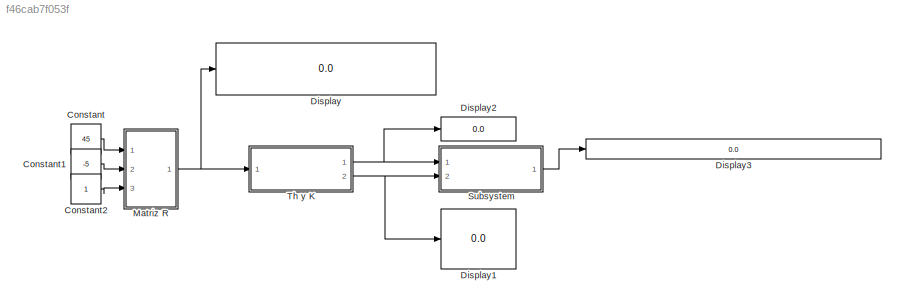
MODEL slx_f46cab7f053f
KIND model
CONFIG AbsTol = auto
CONFIG EnableMultiTasking = off
CONFIG FixedStep = auto
CONFIG MaxStep = auto
CONFIG MinStep = auto
CONFIG RelTol = 1e-3
CONFIG SampleTimeConstraint = Unconstrained
CONFIG Solver = VariableStepAuto
CONFIG SolverName = VariableStepAuto
CONFIG StartTime = 0.0
CONFIG StopTime = 4
BLOCK [Constant] Constant
  Value = 45
BLOCK [Constant] Constant1
  Value = -5
BLOCK [Constant] Constant2
BLOCK [Display] Display
  Decimation = 1
  Ports = [1]
BLOCK [Display] Display1
  Decimation = 1
  Ports = [1]
BLOCK [Display] Display2
  Decimation = 1
  Ports = [1]
BLOCK [Display] Display3
  Decimation = 1
  Ports = [1]
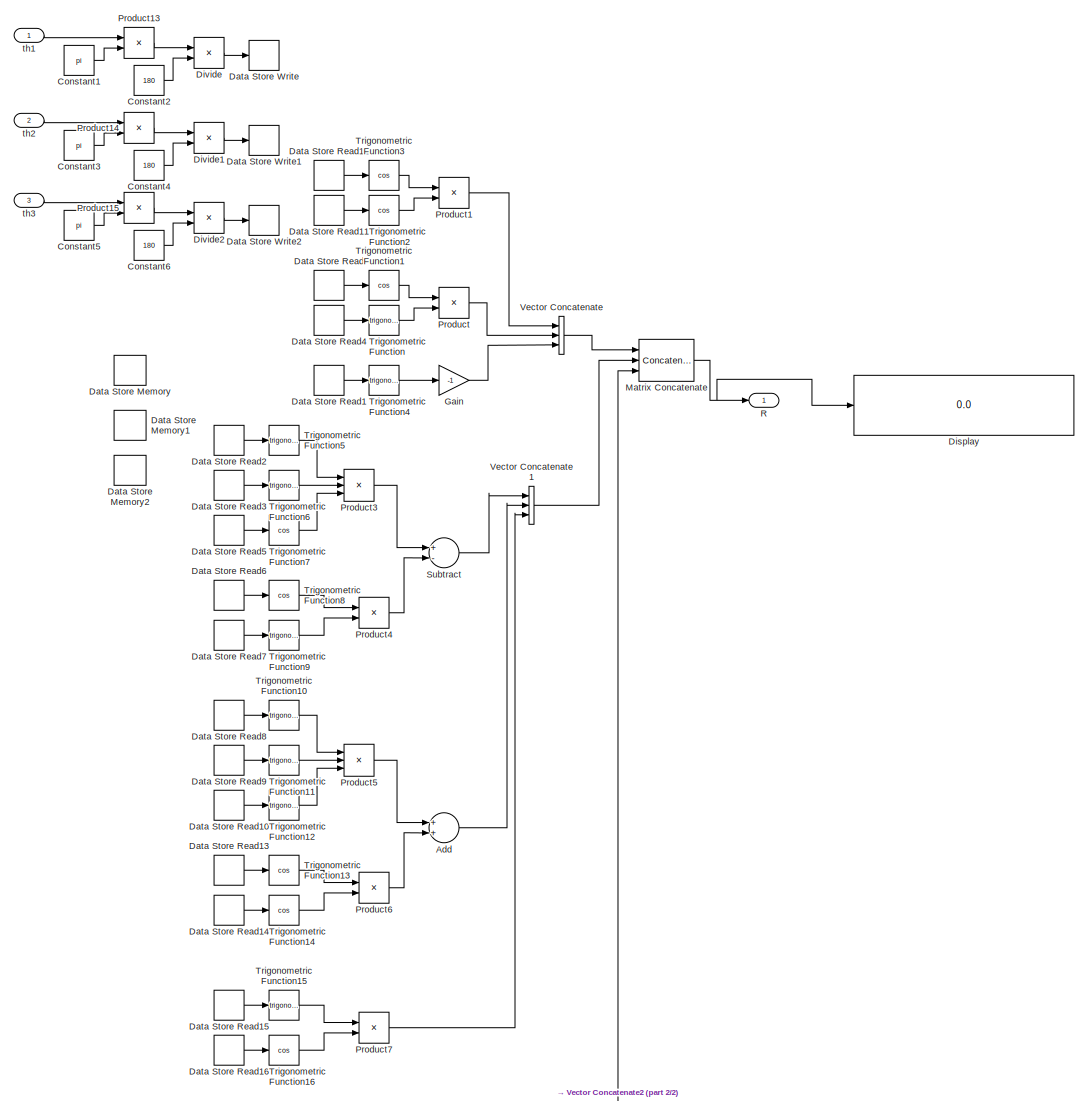
[diagram: Matriz R - part 1/2, full width, top band]
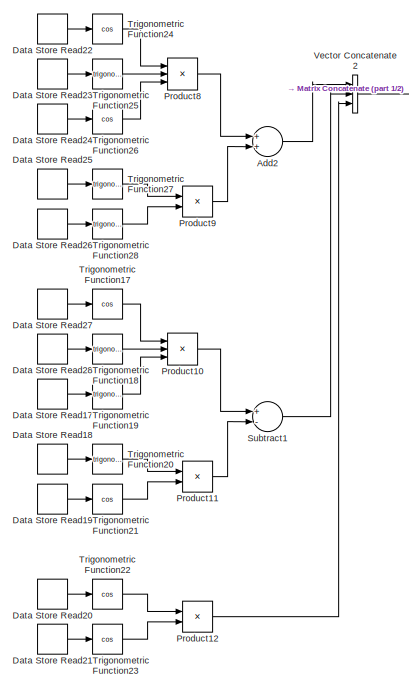
[diagram: Matriz R - part 2/2, bottom center region]
BLOCK [SubSystem] Matriz R
  Ports = [3, 1]
  RequestExecContextInheritance = off
  Variant = off
BLOCK [Sum] Matriz R/Add
  InputSameDT = off
  OutDataTypeStr = Inherit: Inherit via internal rule
  Ports = [2, 1]
  SaturateOnIntegerOverflow = off
BLOCK [Sum] Matriz R/Add2
  InputSameDT = off
  OutDataTypeStr = Inherit: Inherit via internal rule
  Ports = [2, 1]
  SaturateOnIntegerOverflow = off
BLOCK [Constant] Matriz R/Constant1
  Value = pi
BLOCK [Constant] Matriz R/Constant2
  Value = 180
BLOCK [Constant] Matriz R/Constant3
  Value = pi
BLOCK [Constant] Matriz R/Constant4
  Value = 180
BLOCK [Constant] Matriz R/Constant5
  Value = pi
BLOCK [Constant] Matriz R/Constant6
  Value = 180
BLOCK [DataStoreMemory] Matriz R/Data Store Memory
  DataStoreName = th1
  ReadBeforeWriteMsg = warning
  ShowAdditionalParam = off
  WriteAfterReadMsg = warning
  WriteAfterWriteMsg = warning
BLOCK [DataStoreMemory] Matriz R/Data Store Memory1
  DataStoreName = th2
  ReadBeforeWriteMsg = warning
  ShowAdditionalParam = off
  WriteAfterReadMsg = warning
  WriteAfterWriteMsg = warning
BLOCK [DataStoreMemory] Matriz R/Data Store Memory2
  DataStoreName = th3
  ReadBeforeWriteMsg = warning
  ShowAdditionalParam = off
  WriteAfterReadMsg = warning
  WriteAfterWriteMsg = warning
BLOCK [DataStoreRead] Matriz R/Data Store Read
  DataStoreName = th2
  Ports = [0, 1]
BLOCK [DataStoreRead] Matriz R/Data Store Read1
  DataStoreName = th2
  Ports = [0, 1]
BLOCK [DataStoreRead] Matriz R/Data Store Read10
  DataStoreName = th1
  Ports = [0, 1]
BLOCK [DataStoreRead] Matriz R/Data Store Read11
  DataStoreName = th1
  Ports = [0, 1]
BLOCK [DataStoreRead] Matriz R/Data Store Read12
  DataStoreName = th2
  Ports = [0, 1]
BLOCK [DataStoreRead] Matriz R/Data Store Read13
  DataStoreName = th3
  Ports = [0, 1]
BLOCK [DataStoreRead] Matriz R/Data Store Read14
  DataStoreName = th1
  Ports = [0, 1]
BLOCK [DataStoreRead] Matriz R/Data Store Read15
  DataStoreName = th3
  Ports = [0, 1]
BLOCK [DataStoreRead] Matriz R/Data Store Read16
  DataStoreName = th2
  Ports = [0, 1]
BLOCK [DataStoreRead] Matriz R/Data Store Read17
  DataStoreName = th1
  Ports = [0, 1]
BLOCK [DataStoreRead] Matriz R/Data Store Read18
  DataStoreName = th3
  Ports = [0, 1]
BLOCK [DataStoreRead] Matriz R/Data Store Read19
  DataStoreName = th1
  Ports = [0, 1]
BLOCK [DataStoreRead] Matriz R/Data Store Read2
  DataStoreName = th3
  Ports = [0, 1]
BLOCK [DataStoreRead] Matriz R/Data Store Read20
  DataStoreName = th3
  Ports = [0, 1]
BLOCK [DataStoreRead] Matriz R/Data Store Read21
  DataStoreName = th2
  Ports = [0, 1]
BLOCK [DataStoreRead] Matriz R/Data Store Read22
  DataStoreName = th3
  Ports = [0, 1]
BLOCK [DataStoreRead] Matriz R/Data Store Read23
  DataStoreName = th2
  Ports = [0, 1]
BLOCK [DataStoreRead] Matriz R/Data Store Read24
  DataStoreName = th1
  Ports = [0, 1]
BLOCK [DataStoreRead] Matriz R/Data Store Read25
  DataStoreName = th3
  Ports = [0, 1]
BLOCK [DataStoreRead] Matriz R/Data Store Read26
  DataStoreName = th1
  Ports = [0, 1]
BLOCK [DataStoreRead] Matriz R/Data Store Read27
  DataStoreName = th3
  Ports = [0, 1]
BLOCK [DataStoreRead] Matriz R/Data Store Read28
  DataStoreName = th2
  Ports = [0, 1]
BLOCK [DataStoreRead] Matriz R/Data Store Read3
  DataStoreName = th2
  Ports = [0, 1]
BLOCK [DataStoreRead] Matriz R/Data Store Read4
  DataStoreName = th1
  Ports = [0, 1]
BLOCK [DataStoreRead] Matriz R/Data Store Read5
  DataStoreName = th1
  Ports = [0, 1]
BLOCK [DataStoreRead] Matriz R/Data Store Read6
  DataStoreName = th3
  Ports = [0, 1]
BLOCK [DataStoreRead] Matriz R/Data Store Read7
  DataStoreName = th1
  Ports = [0, 1]
BLOCK [DataStoreRead] Matriz R/Data Store Read8
  DataStoreName = th3
  Ports = [0, 1]
BLOCK [DataStoreRead] Matriz R/Data Store Read9
  DataStoreName = th2
  Ports = [0, 1]
BLOCK [DataStoreWrite] Matriz R/Data Store Write
  DataStoreName = th1
  Ports = [1]
BLOCK [DataStoreWrite] Matriz R/Data Store Write1
  DataStoreName = th2
  Ports = [1]
BLOCK [DataStoreWrite] Matriz R/Data Store Write2
  DataStoreName = th3
  Ports = [1]
BLOCK [Display] Matriz R/Display
  Decimation = 1
  Ports = [1]
BLOCK [Product] Matriz R/Divide
  InputSameDT = off
  Inputs = */
  OutDataTypeStr = Inherit: Inherit via internal rule
  Ports = [2, 1]
  RndMeth = Floor
  SaturateOnIntegerOverflow = off
BLOCK [Product] Matriz R/Divide1
  InputSameDT = off
  Inputs = */
  OutDataTypeStr = Inherit: Inherit via internal rule
  Ports = [2, 1]
  RndMeth = Floor
  SaturateOnIntegerOverflow = off
BLOCK [Product] Matriz R/Divide2
  InputSameDT = off
  Inputs = */
  OutDataTypeStr = Inherit: Inherit via internal rule
  Ports = [2, 1]
  RndMeth = Floor
  SaturateOnIntegerOverflow = off
BLOCK [Gain] Matriz R/Gain
  Gain = -1
  OutDataTypeStr = Inherit: Inherit via internal rule
  ParamDataTypeStr = Inherit: Inherit via internal rule
  SaturateOnIntegerOverflow = off
BLOCK [Concatenate] Matriz R/Matrix Concatenate
  ConcatenateDimension = 3
  NumInputs = 3
  Ports = [3, 1]
BLOCK [Product] Matriz R/Product
  InputSameDT = off
  OutDataTypeStr = Inherit: Inherit via internal rule
  Ports = [2, 1]
  RndMeth = Floor
  SaturateOnIntegerOverflow = off
BLOCK [Product] Matriz R/Product1
  InputSameDT = off
  OutDataTypeStr = Inherit: Inherit via internal rule
  Ports = [2, 1]
  RndMeth = Floor
  SaturateOnIntegerOverflow = off
BLOCK [Product] Matriz R/Product10
  InputSameDT = off
  Inputs = 3
  OutDataTypeStr = Inherit: Inherit via internal rule
  Ports = [3, 1]
  RndMeth = Floor
  SaturateOnIntegerOverflow = off
BLOCK [Product] Matriz R/Product11
  InputSameDT = off
  OutDataTypeStr = Inherit: Inherit via internal rule
  Ports = [2, 1]
  RndMeth = Floor
  SaturateOnIntegerOverflow = off
BLOCK [Product] Matriz R/Product12
  InputSameDT = off
  OutDataTypeStr = Inherit: Inherit via internal rule
  Ports = [2, 1]
  RndMeth = Floor
  SaturateOnIntegerOverflow = off
BLOCK [Product] Matriz R/Product13
  InputSameDT = off
  OutDataTypeStr = Inherit: Inherit via internal rule
  Ports = [2, 1]
  RndMeth = Floor
  SaturateOnIntegerOverflow = off
BLOCK [Product] Matriz R/Product14
  InputSameDT = off
  OutDataTypeStr = Inherit: Inherit via internal rule
  Ports = [2, 1]
  RndMeth = Floor
  SaturateOnIntegerOverflow = off
BLOCK [Product] Matriz R/Product15
  InputSameDT = off
  OutDataTypeStr = Inherit: Inherit via internal rule
  Ports = [2, 1]
  RndMeth = Floor
  SaturateOnIntegerOverflow = off
BLOCK [Product] Matriz R/Product3
  InputSameDT = off
  Inputs = 3
  OutDataTypeStr = Inherit: Inherit via internal rule
  Ports = [3, 1]
  RndMeth = Floor
  SaturateOnIntegerOverflow = off
BLOCK [Product] Matriz R/Product4
  InputSameDT = off
  OutDataTypeStr = Inherit: Inherit via internal rule
  Ports = [2, 1]
  RndMeth = Floor
  SaturateOnIntegerOverflow = off
BLOCK [Product] Matriz R/Product5
  InputSameDT = off
  Inputs = 3
  OutDataTypeStr = Inherit: Inherit via internal rule
  Ports = [3, 1]
  RndMeth = Floor
  SaturateOnIntegerOverflow = off
BLOCK [Product] Matriz R/Product6
  InputSameDT = off
  OutDataTypeStr = Inherit: Inherit via internal rule
  Ports = [2, 1]
  RndMeth = Floor
  SaturateOnIntegerOverflow = off
BLOCK [Product] Matriz R/Product7
  InputSameDT = off
  OutDataTypeStr = Inherit: Inherit via internal rule
  Ports = [2, 1]
  RndMeth = Floor
  SaturateOnIntegerOverflow = off
BLOCK [Product] Matriz R/Product8
  InputSameDT = off
  Inputs = 3
  OutDataTypeStr = Inherit: Inherit via internal rule
  Ports = [3, 1]
  RndMeth = Floor
  SaturateOnIntegerOverflow = off
BLOCK [Product] Matriz R/Product9
  InputSameDT = off
  OutDataTypeStr = Inherit: Inherit via internal rule
  Ports = [2, 1]
  RndMeth = Floor
  SaturateOnIntegerOverflow = off
BLOCK [Outport] Matriz R/R
  IconDisplay = Port number
BLOCK [Sum] Matriz R/Subtract
  InputSameDT = off
  Inputs = +-
  OutDataTypeStr = Inherit: Inherit via internal rule
  Ports = [2, 1]
  SaturateOnIntegerOverflow = off
BLOCK [Sum] Matriz R/Subtract1
  InputSameDT = off
  Inputs = +-
  OutDataTypeStr = Inherit: Inherit via internal rule
  Ports = [2, 1]
  SaturateOnIntegerOverflow = off
BLOCK [Trigonometry] Matriz R/Trigonometric Function
  Ports = [1, 1]
BLOCK [Trigonometry] Matriz R/Trigonometric Function1
  Operator = cos
  Ports = [1, 1]
BLOCK [Trigonometry] Matriz R/Trigonometric Function10
  Ports = [1, 1]
BLOCK [Trigonometry] Matriz R/Trigonometric Function11
  Ports = [1, 1]
BLOCK [Trigonometry] Matriz R/Trigonometric Function12
  Ports = [1, 1]
BLOCK [Trigonometry] Matriz R/Trigonometric Function13
  Operator = cos
  Ports = [1, 1]
BLOCK [Trigonometry] Matriz R/Trigonometric Function14
  Operator = cos
  Ports = [1, 1]
BLOCK [Trigonometry] Matriz R/Trigonometric Function15
  Ports = [1, 1]
BLOCK [Trigonometry] Matriz R/Trigonometric Function16
  Operator = cos
  Ports = [1, 1]
BLOCK [Trigonometry] Matriz R/Trigonometric Function17
  Operator = cos
  Ports = [1, 1]
BLOCK [Trigonometry] Matriz R/Trigonometric Function18
  Ports = [1, 1]
BLOCK [Trigonometry] Matriz R/Trigonometric Function19
  Ports = [1, 1]
BLOCK [Trigonometry] Matriz R/Trigonometric Function2
  Operator = cos
  Ports = [1, 1]
BLOCK [Trigonometry] Matriz R/Trigonometric Function20
  Ports = [1, 1]
BLOCK [Trigonometry] Matriz R/Trigonometric Function21
  Operator = cos
  Ports = [1, 1]
BLOCK [Trigonometry] Matriz R/Trigonometric Function22
  Operator = cos
  Ports = [1, 1]
BLOCK [Trigonometry] Matriz R/Trigonometric Function23
  Operator = cos
  Ports = [1, 1]
BLOCK [Trigonometry] Matriz R/Trigonometric Function24
  Operator = cos
  Ports = [1, 1]
BLOCK [Trigonometry] Matriz R/Trigonometric Function25
  Ports = [1, 1]
BLOCK [Trigonometry] Matriz R/Trigonometric Function26
  Operator = cos
  Ports = [1, 1]
BLOCK [Trigonometry] Matriz R/Trigonometric Function27
  Ports = [1, 1]
BLOCK [Trigonometry] Matriz R/Trigonometric Function28
  Ports = [1, 1]
BLOCK [Trigonometry] Matriz R/Trigonometric Function3
  Operator = cos
  Ports = [1, 1]
BLOCK [Trigonometry] Matriz R/Trigonometric Function4
  Ports = [1, 1]
BLOCK [Trigonometry] Matriz R/Trigonometric Function5
  Ports = [1, 1]
BLOCK [Trigonometry] Matriz R/Trigonometric Function6
  Ports = [1, 1]
BLOCK [Trigonometry] Matriz R/Trigonometric Function7
  Operator = cos
  Ports = [1, 1]
BLOCK [Trigonometry] Matriz R/Trigonometric Function8
  Operator = cos
  Ports = [1, 1]
BLOCK [Trigonometry] Matriz R/Trigonometric Function9
  Ports = [1, 1]
BLOCK [Concatenate] Matriz R/Vector Concatenate
  NumInputs = 3
  Ports = [3, 1]
BLOCK [Concatenate] Matriz R/Vector Concatenate1
  NumInputs = 3
  Ports = [3, 1]
BLOCK [Concatenate] Matriz R/Vector Concatenate2
  NumInputs = 3
  Ports = [3, 1]
BLOCK [Inport] Matriz R/th1
  IconDisplay = Port number
BLOCK [Inport] Matriz R/th2
  IconDisplay = Port number
  Port = 2
BLOCK [Inport] Matriz R/th3
  IconDisplay = Port number
  Port = 3
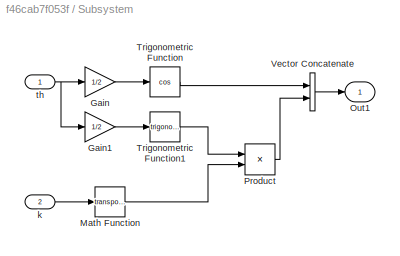
BLOCK [SubSystem] Subsystem
  Ports = [2, 1]
  RequestExecContextInheritance = off
  Variant = off
BLOCK [Gain] Subsystem/Gain
  Gain = 1/2
  OutDataTypeStr = Inherit: Inherit via internal rule
  ParamDataTypeStr = Inherit: Inherit via internal rule
  SaturateOnIntegerOverflow = off
BLOCK [Gain] Subsystem/Gain1
  Gain = 1/2
  OutDataTypeStr = Inherit: Inherit via internal rule
  ParamDataTypeStr = Inherit: Inherit via internal rule
  SaturateOnIntegerOverflow = off
BLOCK [Math] Subsystem/Math Function
  Operator = transpose
  Ports = [1, 1]
BLOCK [Outport] Subsystem/Out1
  IconDisplay = Port number
BLOCK [Product] Subsystem/Product
  InputSameDT = off
  OutDataTypeStr = Inherit: Inherit via internal rule
  Ports = [2, 1]
  RndMeth = Floor
  SaturateOnIntegerOverflow = off
BLOCK [Trigonometry] Subsystem/Trigonometric Function
  Operator = cos
  Ports = [1, 1]
BLOCK [Trigonometry] Subsystem/Trigonometric Function1
  Ports = [1, 1]
BLOCK [Concatenate] Subsystem/Vector Concatenate
  Ports = [2, 1]
BLOCK [Inport] Subsystem/k 
  IconDisplay = Port number
  Port = 2
BLOCK [Inport] Subsystem/th 
  IconDisplay = Port number
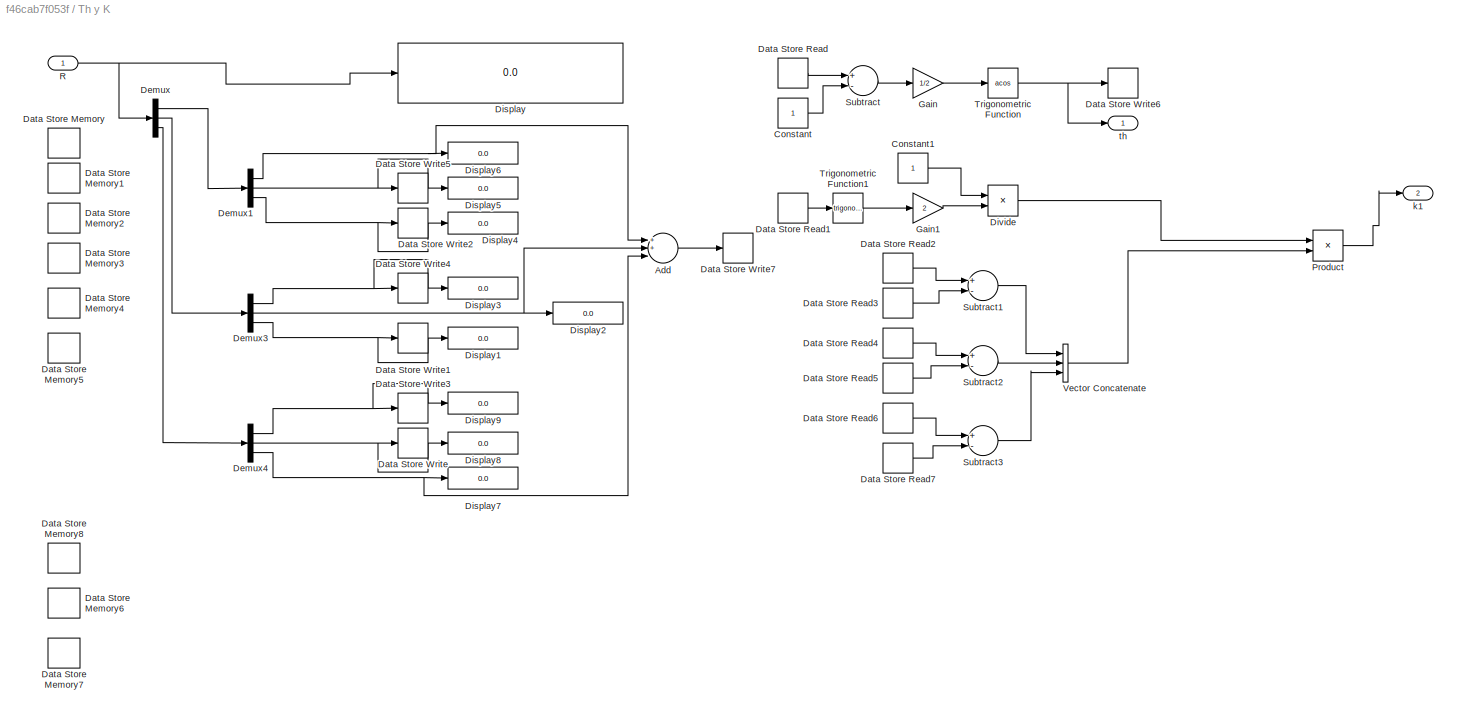
BLOCK [SubSystem] Th y K
  Ports = [1, 2]
  RequestExecContextInheritance = off
  Variant = off
BLOCK [Sum] Th y K/Add
  InputSameDT = off
  Inputs = 3
  OutDataTypeStr = Inherit: Inherit via internal rule
  Ports = [3, 1]
  SaturateOnIntegerOverflow = off
BLOCK [Constant] Th y K/Constant
BLOCK [Constant] Th y K/Constant1
BLOCK [DataStoreMemory] Th y K/Data Store Memory
  DataStoreName = r32
  ReadBeforeWriteMsg = warning
  ShowAdditionalParam = off
  WriteAfterReadMsg = warning
  WriteAfterWriteMsg = warning
BLOCK [DataStoreMemory] Th y K/Data Store Memory1
  DataStoreName = r23
  ReadBeforeWriteMsg = warning
  ShowAdditionalParam = off
  WriteAfterReadMsg = warning
  WriteAfterWriteMsg = warning
BLOCK [DataStoreMemory] Th y K/Data Store Memory2
  DataStoreName = r13
  ReadBeforeWriteMsg = warning
  ShowAdditionalParam = off
  WriteAfterReadMsg = warning
  WriteAfterWriteMsg = warning
BLOCK [DataStoreMemory] Th y K/Data Store Memory3
  DataStoreName = r31
  ReadBeforeWriteMsg = warning
  ShowAdditionalParam = off
  WriteAfterReadMsg = warning
  WriteAfterWriteMsg = warning
BLOCK [DataStoreMemory] Th y K/Data Store Memory4
  DataStoreName = r21
  ReadBeforeWriteMsg = warning
  ShowAdditionalParam = off
  WriteAfterReadMsg = warning
  WriteAfterWriteMsg = warning
BLOCK [DataStoreMemory] Th y K/Data Store Memory5
  DataStoreName = r12
  ReadBeforeWriteMsg = warning
  ShowAdditionalParam = off
  WriteAfterReadMsg = warning
  WriteAfterWriteMsg = warning
BLOCK [DataStoreMemory] Th y K/Data Store Memory6
  DataStoreName = th
  ReadBeforeWriteMsg = warning
  ShowAdditionalParam = off
  WriteAfterReadMsg = warning
  WriteAfterWriteMsg = warning
BLOCK [DataStoreMemory] Th y K/Data Store Memory7
  DataStoreName = k
  ReadBeforeWriteMsg = warning
  ShowAdditionalParam = off
  WriteAfterReadMsg = warning
  WriteAfterWriteMsg = warning
BLOCK [DataStoreMemory] Th y K/Data Store Memory8
  DataStoreName = trace
  ReadBeforeWriteMsg = warning
  ShowAdditionalParam = off
  WriteAfterReadMsg = warning
  WriteAfterWriteMsg = warning
BLOCK [DataStoreRead] Th y K/Data Store Read
  DataStoreName = trace
  Ports = [0, 1]
BLOCK [DataStoreRead] Th y K/Data Store Read1
  DataStoreName = th
  Ports = [0, 1]
BLOCK [DataStoreRead] Th y K/Data Store Read2
  DataStoreName = r32
  Ports = [0, 1]
BLOCK [DataStoreRead] Th y K/Data Store Read3
  DataStoreName = r23
  Ports = [0, 1]
BLOCK [DataStoreRead] Th y K/Data Store Read4
  DataStoreName = r13
  Ports = [0, 1]
BLOCK [DataStoreRead] Th y K/Data Store Read5
  DataStoreName = r31
  Ports = [0, 1]
BLOCK [DataStoreRead] Th y K/Data Store Read6
  DataStoreName = r21
  Ports = [0, 1]
BLOCK [DataStoreRead] Th y K/Data Store Read7
  DataStoreName = r12
  Ports = [0, 1]
BLOCK [DataStoreWrite] Th y K/Data Store Write
  DataStoreName = r32
  Ports = [1]
BLOCK [DataStoreWrite] Th y K/Data Store Write1
  DataStoreName = r23
  Ports = [1]
BLOCK [DataStoreWrite] Th y K/Data Store Write2
  DataStoreName = r13
  Ports = [1]
BLOCK [DataStoreWrite] Th y K/Data Store Write3
  DataStoreName = r31
  Ports = [1]
BLOCK [DataStoreWrite] Th y K/Data Store Write4
  DataStoreName = r21
  Ports = [1]
BLOCK [DataStoreWrite] Th y K/Data Store Write5
  DataStoreName = r12
  Ports = [1]
BLOCK [DataStoreWrite] Th y K/Data Store Write6
  DataStoreName = th
  Ports = [1]
BLOCK [DataStoreWrite] Th y K/Data Store Write7
  DataStoreName = trace
  Ports = [1]
BLOCK [Demux] Th y K/Demux
  DisplayOption = bar
  Outputs = 3
  Ports = [1, 3]
BLOCK [Demux] Th y K/Demux1
  DisplayOption = bar
  Outputs = 3
  Ports = [1, 3]
BLOCK [Demux] Th y K/Demux3
  DisplayOption = bar
  Outputs = 3
  Ports = [1, 3]
BLOCK [Demux] Th y K/Demux4
  DisplayOption = bar
  Outputs = 3
  Ports = [1, 3]
BLOCK [Display] Th y K/Display
  Decimation = 1
  Ports = [1]
BLOCK [Display] Th y K/Display1
  Decimation = 1
  Ports = [1]
BLOCK [Display] Th y K/Display2
  Decimation = 1
  Ports = [1]
BLOCK [Display] Th y K/Display3
  Decimation = 1
  Ports = [1]
BLOCK [Display] Th y K/Display4
  Decimation = 1
  Ports = [1]
BLOCK [Display] Th y K/Display5
  Decimation = 1
  Ports = [1]
BLOCK [Display] Th y K/Display6
  Decimation = 1
  Ports = [1]
BLOCK [Display] Th y K/Display7
  Decimation = 1
  Ports = [1]
BLOCK [Display] Th y K/Display8
  Decimation = 1
  Ports = [1]
BLOCK [Display] Th y K/Display9
  Decimation = 1
  Ports = [1]
BLOCK [Product] Th y K/Divide
  InputSameDT = off
  Inputs = */
  OutDataTypeStr = Inherit: Inherit via internal rule
  Ports = [2, 1]
  RndMeth = Floor
  SaturateOnIntegerOverflow = off
BLOCK [Gain] Th y K/Gain
  Gain = 1/2
  OutDataTypeStr = Inherit: Inherit via internal rule
  ParamDataTypeStr = Inherit: Inherit via internal rule
  SaturateOnIntegerOverflow = off
BLOCK [Gain] Th y K/Gain1
  Gain = 2
  OutDataTypeStr = Inherit: Inherit via internal rule
  ParamDataTypeStr = Inherit: Inherit via internal rule
  SaturateOnIntegerOverflow = off
BLOCK [Product] Th y K/Product
  InputSameDT = off
  OutDataTypeStr = Inherit: Inherit via internal rule
  Ports = [2, 1]
  RndMeth = Floor
  SaturateOnIntegerOverflow = off
BLOCK [Inport] Th y K/R 
  IconDisplay = Port number
BLOCK [Sum] Th y K/Subtract
  InputSameDT = off
  Inputs = +-
  OutDataTypeStr = Inherit: Inherit via internal rule
  Ports = [2, 1]
  SaturateOnIntegerOverflow = off
BLOCK [Sum] Th y K/Subtract1
  InputSameDT = off
  Inputs = +-
  OutDataTypeStr = Inherit: Inherit via internal rule
  Ports = [2, 1]
  SaturateOnIntegerOverflow = off
BLOCK [Sum] Th y K/Subtract2
  InputSameDT = off
  Inputs = +-
  OutDataTypeStr = Inherit: Inherit via internal rule
  Ports = [2, 1]
  SaturateOnIntegerOverflow = off
BLOCK [Sum] Th y K/Subtract3
  InputSameDT = off
  Inputs = +-
  OutDataTypeStr = Inherit: Inherit via internal rule
  Ports = [2, 1]
  SaturateOnIntegerOverflow = off
BLOCK [Trigonometry] Th y K/Trigonometric Function
  Operator = acos
  Ports = [1, 1]
BLOCK [Trigonometry] Th y K/Trigonometric Function1
  Ports = [1, 1]
BLOCK [Concatenate] Th y K/Vector Concatenate
  Mode = Multidimensional array
  NumInputs = 3
  Ports = [3, 1]
BLOCK [Outport] Th y K/k1
  IconDisplay = Port number
  Port = 2
BLOCK [Outport] Th y K/th 
  IconDisplay = Port number
LINE Constant1:1 -> Matriz R:2
LINE Constant2:1 -> Matriz R:3
LINE Constant:1 -> Matriz R:1
LINE Matriz R/Add2:1 -> Matriz R/Vector Concatenate2:1
LINE Matriz R/Add:1 -> Matriz R/Vector Concatenate1:2
LINE Matriz R/Constant1:1 -> Matriz R/Product13:2
LINE Matriz R/Constant2:1 -> Matriz R/Divide:2
LINE Matriz R/Constant3:1 -> Matriz R/Product14:2
LINE Matriz R/Constant4:1 -> Matriz R/Divide1:2
LINE Matriz R/Constant5:1 -> Matriz R/Product15:2
LINE Matriz R/Constant6:1 -> Matriz R/Divide2:2
LINE Matriz R/Data Store Read10:1 -> Matriz R/Trigonometric Function12:1
LINE Matriz R/Data Store Read11:1 -> Matriz R/Trigonometric Function2:1
LINE Matriz R/Data Store Read12:1 -> Matriz R/Trigonometric Function3:1
LINE Matriz R/Data Store Read13:1 -> Matriz R/Trigonometric Function13:1
LINE Matriz R/Data Store Read14:1 -> Matriz R/Trigonometric Function14:1
LINE Matriz R/Data Store Read15:1 -> Matriz R/Trigonometric Function15:1
LINE Matriz R/Data Store Read16:1 -> Matriz R/Trigonometric Function16:1
LINE Matriz R/Data Store Read17:1 -> Matriz R/Trigonometric Function19:1
LINE Matriz R/Data Store Read18:1 -> Matriz R/Trigonometric Function20:1
LINE Matriz R/Data Store Read19:1 -> Matriz R/Trigonometric Function21:1
LINE Matriz R/Data Store Read1:1 -> Matriz R/Trigonometric Function4:1
LINE Matriz R/Data Store Read20:1 -> Matriz R/Trigonometric Function22:1
LINE Matriz R/Data Store Read21:1 -> Matriz R/Trigonometric Function23:1
LINE Matriz R/Data Store Read22:1 -> Matriz R/Trigonometric Function24:1
LINE Matriz R/Data Store Read23:1 -> Matriz R/Trigonometric Function25:1
LINE Matriz R/Data Store Read24:1 -> Matriz R/Trigonometric Function26:1
LINE Matriz R/Data Store Read25:1 -> Matriz R/Trigonometric Function27:1
LINE Matriz R/Data Store Read26:1 -> Matriz R/Trigonometric Function28:1
LINE Matriz R/Data Store Read27:1 -> Matriz R/Trigonometric Function17:1
LINE Matriz R/Data Store Read28:1 -> Matriz R/Trigonometric Function18:1
LINE Matriz R/Data Store Read2:1 -> Matriz R/Trigonometric Function5:1
LINE Matriz R/Data Store Read3:1 -> Matriz R/Trigonometric Function6:1
LINE Matriz R/Data Store Read4:1 -> Matriz R/Trigonometric Function:1
LINE Matriz R/Data Store Read5:1 -> Matriz R/Trigonometric Function7:1
LINE Matriz R/Data Store Read6:1 -> Matriz R/Trigonometric Function8:1
LINE Matriz R/Data Store Read7:1 -> Matriz R/Trigonometric Function9:1
LINE Matriz R/Data Store Read8:1 -> Matriz R/Trigonometric Function10:1
LINE Matriz R/Data Store Read9:1 -> Matriz R/Trigonometric Function11:1
LINE Matriz R/Data Store Read:1 -> Matriz R/Trigonometric Function1:1
LINE Matriz R/Divide1:1 -> Matriz R/Data Store Write1:1
LINE Matriz R/Divide2:1 -> Matriz R/Data Store Write2:1
LINE Matriz R/Divide:1 -> Matriz R/Data Store Write:1
LINE Matriz R/Gain:1 -> Matriz R/Vector Concatenate:3
NET Matriz R/Matrix Concatenate:1 -> Matriz R/Display:1, Matriz R/R:1
LINE Matriz R/Product10:1 -> Matriz R/Subtract1:1
LINE Matriz R/Product11:1 -> Matriz R/Subtract1:2
LINE Matriz R/Product12:1 -> Matriz R/Vector Concatenate2:3
LINE Matriz R/Product13:1 -> Matriz R/Divide:1
LINE Matriz R/Product14:1 -> Matriz R/Divide1:1
LINE Matriz R/Product15:1 -> Matriz R/Divide2:1
LINE Matriz R/Product1:1 -> Matriz R/Vector Concatenate:1
LINE Matriz R/Product3:1 -> Matriz R/Subtract:1
LINE Matriz R/Product4:1 -> Matriz R/Subtract:2
LINE Matriz R/Product5:1 -> Matriz R/Add:1
LINE Matriz R/Product6:1 -> Matriz R/Add:2
LINE Matriz R/Product7:1 -> Matriz R/Vector Concatenate1:3
LINE Matriz R/Product8:1 -> Matriz R/Add2:1
LINE Matriz R/Product9:1 -> Matriz R/Add2:2
LINE Matriz R/Product:1 -> Matriz R/Vector Concatenate:2
LINE Matriz R/Subtract1:1 -> Matriz R/Vector Concatenate2:2
LINE Matriz R/Subtract:1 -> Matriz R/Vector Concatenate1:1
LINE Matriz R/Trigonometric Function10:1 -> Matriz R/Product5:1
LINE Matriz R/Trigonometric Function11:1 -> Matriz R/Product5:2
LINE Matriz R/Trigonometric Function12:1 -> Matriz R/Product5:3
LINE Matriz R/Trigonometric Function13:1 -> Matriz R/Product6:1
LINE Matriz R/Trigonometric Function14:1 -> Matriz R/Product6:2
LINE Matriz R/Trigonometric Function15:1 -> Matriz R/Product7:1
LINE Matriz R/Trigonometric Function16:1 -> Matriz R/Product7:2
LINE Matriz R/Trigonometric Function17:1 -> Matriz R/Product10:1
LINE Matriz R/Trigonometric Function18:1 -> Matriz R/Product10:2
LINE Matriz R/Trigonometric Function19:1 -> Matriz R/Product10:3
LINE Matriz R/Trigonometric Function1:1 -> Matriz R/Product:1
LINE Matriz R/Trigonometric Function20:1 -> Matriz R/Product11:1
LINE Matriz R/Trigonometric Function21:1 -> Matriz R/Product11:2
LINE Matriz R/Trigonometric Function22:1 -> Matriz R/Product12:1
LINE Matriz R/Trigonometric Function23:1 -> Matriz R/Product12:2
LINE Matriz R/Trigonometric Function24:1 -> Matriz R/Product8:1
LINE Matriz R/Trigonometric Function25:1 -> Matriz R/Product8:2
LINE Matriz R/Trigonometric Function26:1 -> Matriz R/Product8:3
LINE Matriz R/Trigonometric Function27:1 -> Matriz R/Product9:1
LINE Matriz R/Trigonometric Function28:1 -> Matriz R/Product9:2
LINE Matriz R/Trigonometric Function2:1 -> Matriz R/Product1:2
LINE Matriz R/Trigonometric Function3:1 -> Matriz R/Product1:1
LINE Matriz R/Trigonometric Function4:1 -> Matriz R/Gain:1
LINE Matriz R/Trigonometric Function5:1 -> Matriz R/Product3:1
LINE Matriz R/Trigonometric Function6:1 -> Matriz R/Product3:2
LINE Matriz R/Trigonometric Function7:1 -> Matriz R/Product3:3
LINE Matriz R/Trigonometric Function8:1 -> Matriz R/Product4:1
LINE Matriz R/Trigonometric Function9:1 -> Matriz R/Product4:2
LINE Matriz R/Trigonometric Function:1 -> Matriz R/Product:2
LINE Matriz R/Vector Concatenate1:1 -> Matriz R/Matrix Concatenate:2
LINE Matriz R/Vector Concatenate2:1 -> Matriz R/Matrix Concatenate:3
LINE Matriz R/Vector Concatenate:1 -> Matriz R/Matrix Concatenate:1
LINE Matriz R/th1:1 -> Matriz R/Product13:1
LINE Matriz R/th2:1 -> Matriz R/Product14:1
LINE Matriz R/th3:1 -> Matriz R/Product15:1
NET Matriz R:1 -> Display:1, Th y K:1
LINE Subsystem/Gain1:1 -> Subsystem/Trigonometric Function1:1
LINE Subsystem/Gain:1 -> Subsystem/Trigonometric Function:1
LINE Subsystem/Math Function:1 -> Subsystem/Product:2
LINE Subsystem/Product:1 -> Subsystem/Vector Concatenate:2
LINE Subsystem/Trigonometric Function1:1 -> Subsystem/Product:1
LINE Subsystem/Trigonometric Function:1 -> Subsystem/Vector Concatenate:1
LINE Subsystem/Vector Concatenate:1 -> Subsystem/Out1:1
LINE Subsystem/k :1 -> Subsystem/Math Function:1
NET Subsystem/th :1 -> Subsystem/Gain1:1, Subsystem/Gain:1
LINE Subsystem:1 -> Display3:1
LINE Th y K/Add:1 -> Th y K/Data Store Write7:1
LINE Th y K/Constant1:1 -> Th y K/Divide:1
LINE Th y K/Constant:1 -> Th y K/Subtract:2
LINE Th y K/Data Store Read1:1 -> Th y K/Trigonometric Function1:1
LINE Th y K/Data Store Read2:1 -> Th y K/Subtract1:1
LINE Th y K/Data Store Read3:1 -> Th y K/Subtract1:2
LINE Th y K/Data Store Read4:1 -> Th y K/Subtract2:1
LINE Th y K/Data Store Read5:1 -> Th y K/Subtract2:2
LINE Th y K/Data Store Read6:1 -> Th y K/Subtract3:1
LINE Th y K/Data Store Read7:1 -> Th y K/Subtract3:2
LINE Th y K/Data Store Read:1 -> Th y K/Subtract:1
NET Th y K/Demux1:1 -> Th y K/Add:1, Th y K/Display6:1
NET Th y K/Demux1:2 -> Th y K/Data Store Write5:1, Th y K/Display5:1
NET Th y K/Demux1:3 -> Th y K/Data Store Write2:1, Th y K/Display4:1
NET Th y K/Demux3:1 -> Th y K/Data Store Write4:1, Th y K/Display3:1
NET Th y K/Demux3:2 -> Th y K/Add:2, Th y K/Display2:1
NET Th y K/Demux3:3 -> Th y K/Data Store Write1:1, Th y K/Display1:1
NET Th y K/Demux4:1 -> Th y K/Data Store Write3:1, Th y K/Display9:1
NET Th y K/Demux4:2 -> Th y K/Data Store Write:1, Th y K/Display8:1
NET Th y K/Demux4:3 -> Th y K/Add:3, Th y K/Display7:1
LINE Th y K/Demux:1 -> Th y K/Demux1:1
LINE Th y K/Demux:2 -> Th y K/Demux3:1
LINE Th y K/Demux:3 -> Th y K/Demux4:1
LINE Th y K/Divide:1 -> Th y K/Product:1
LINE Th y K/Gain1:1 -> Th y K/Divide:2
LINE Th y K/Gain:1 -> Th y K/Trigonometric Function:1
LINE Th y K/Product:1 -> Th y K/k1:1
NET Th y K/R :1 -> Th y K/Demux:1, Th y K/Display:1
LINE Th y K/Subtract1:1 -> Th y K/Vector Concatenate:1
LINE Th y K/Subtract2:1 -> Th y K/Vector Concatenate:2
LINE Th y K/Subtract3:1 -> Th y K/Vector Concatenate:3
LINE Th y K/Subtract:1 -> Th y K/Gain:1
LINE Th y K/Trigonometric Function1:1 -> Th y K/Gain1:1
NET Th y K/Trigonometric Function:1 -> Th y K/Data Store Write6:1, Th y K/th :1
LINE Th y K/Vector Concatenate:1 -> Th y K/Product:2
NET Th y K:1 -> Display2:1, Subsystem:1
NET Th y K:2 -> Display1:1, Subsystem:2
note: NET lines group one-source signal fan-out (src -> all destinations, sorted); 1:1 wires keep LINE
